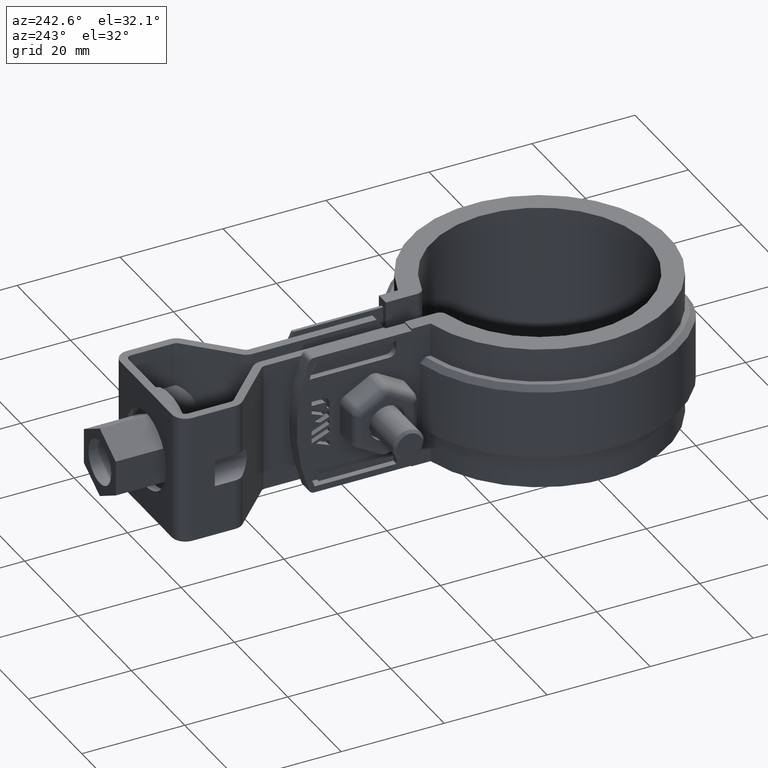
[diagram: clean part render]
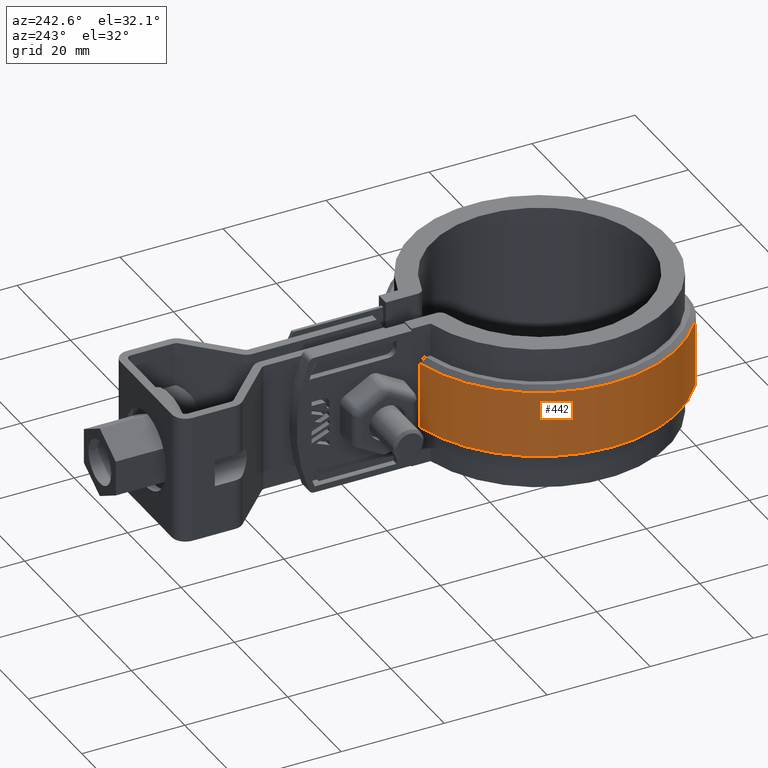
[diagram: same view with one face highlighted and labeled with its STEP entity id]
A machine part, auxiliary view. The second image highlights one B-rep face of the part: STEP entity #442.
In plain terms, the highlighted cylindrical surface (partial cylindrical patch) has radius 27.095 mm, axis along (0, 0, -1).
Its self-contained STEP definition (entity closure, byte-faithful):
#442 = ADVANCED_FACE( '', ( #860 ), #861, .T. );
#860 = FACE_OUTER_BOUND( '', #1953, .T. );
#861 = CYLINDRICAL_SURFACE( '', #1954, 27.0950000000000 );
#1953 = EDGE_LOOP( '', ( #3905, #3906, #3907, #3908 ) );
#1954 = AXIS2_PLACEMENT_3D( '', #3909, #3910, #3911 );
#3905 = ORIENTED_EDGE( '', *, *, #6404, .F. );
#3906 = ORIENTED_EDGE( '', *, *, #6415, .T. );
#3907 = ORIENTED_EDGE( '', *, *, #6416, .T. );
#3908 = ORIENTED_EDGE( '', *, *, #6417, .T. );
#3909 = CARTESIAN_POINT( '', ( 0.000000000000000, 3.46944695195361E-015, -20.0000000000000 ) );
#3910 = DIRECTION( '', ( 0.000000000000000, 0.000000000000000, -1.00000000000000 ) );
#3911 = DIRECTION( '', ( 0.209705966713379, 0.977764494919307, 0.000000000000000 ) );
#6404 = EDGE_CURVE( '', #7537, #7539, #7540, .T. );
#6415 = EDGE_CURVE( '', #7537, #7546, #7557, .F. );
#6416 = EDGE_CURVE( '', #7546, #7558, #7559, .T. );
#6417 = EDGE_CURVE( '', #7558, #7539, #7560, .T. );
#7537 = VERTEX_POINT( '', #10804 );
#7539 = VERTEX_POINT( '', #10809 );
#7540 = LINE( '', #10810, #10811 );
#7546 = VERTEX_POINT( '', #10822 );
#7557 = CIRCLE( '', #10837, 27.0950000000000 );
#7558 = VERTEX_POINT( '', #10838 );
#7559 = LINE( '', #10839, #10840 );
#7560 = CIRCLE( '', #10841, 27.0950000000000 );
#10804 = CARTESIAN_POINT( '', ( -6.10000000000002, 26.3994133457545, -19.0000000000000 ) );
#10809 = CARTESIAN_POINT( '', ( -6.10000000000002, 26.3994133457545, -6.00000000000000 ) );
#10810 = CARTESIAN_POINT( '', ( -6.10000000000002, 26.3994133457545, -20.0000000000000 ) );
#10811 = VECTOR( '', #12763, 1000.00000000000 );
#10822 = CARTESIAN_POINT( '', ( -15.8725259722264, -21.9590970729900, -19.0000000000000 ) );
#10837 = AXIS2_PLACEMENT_3D( '', #12779, #12780, #12781 );
#10838 = CARTESIAN_POINT( '', ( -15.8725259722264, -21.9590970729900, -6.00000000000000 ) );
#10839 = CARTESIAN_POINT( '', ( -15.8725259722264, -21.9590970729900, -20.0000000000000 ) );
#10840 = VECTOR( '', #12782, 1000.00000000000 );
#10841 = AXIS2_PLACEMENT_3D( '', #12783, #12784, #12785 );
#12763 = DIRECTION( '', ( 0.000000000000000, 0.000000000000000, 1.00000000000000 ) );
#12779 = CARTESIAN_POINT( '', ( 0.000000000000000, 3.46944695195361E-015, -19.0000000000000 ) );
#12780 = DIRECTION( '', ( 0.000000000000000, 0.000000000000000, -1.00000000000000 ) );
#12781 = DIRECTION( '', ( -1.00000000000000, 0.000000000000000, 0.000000000000000 ) );
#12782 = DIRECTION( '', ( 0.000000000000000, 0.000000000000000, 1.00000000000000 ) );
#12783 = CARTESIAN_POINT( '', ( 0.000000000000000, 3.46944695195361E-015, -6.00000000000000 ) );
#12784 = DIRECTION( '', ( 0.000000000000000, 0.000000000000000, -1.00000000000000 ) );
#12785 = DIRECTION( '', ( -1.00000000000000, 0.000000000000000, 0.000000000000000 ) );